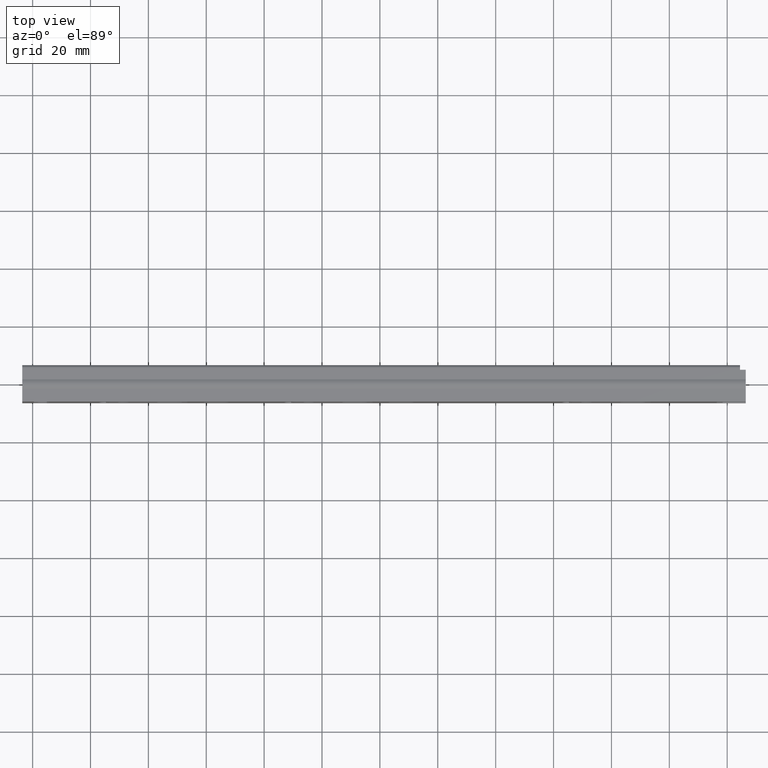
[diagram: clean part render]
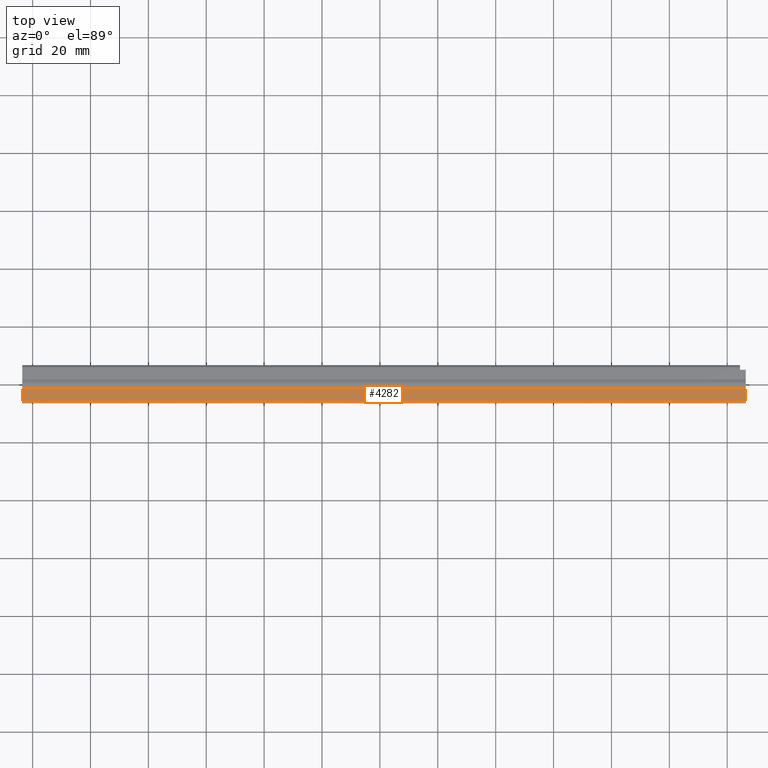
[diagram: same view with one face highlighted and labeled with its STEP entity id]
A machine part, top view. The second image highlights one B-rep face of the part: STEP entity #4282.
In plain terms, the highlighted planar face has unit normal (0, 0, 1).
Its self-contained STEP definition (entity closure, byte-faithful):
#276=FACE_OUTER_BOUND('',#518,.T.);
#518=EDGE_LOOP('',(#3253,#3254,#3255,#3256));
#876=LINE('',#6619,#1334);
#877=LINE('',#6621,#1335);
#878=LINE('',#6623,#1336);
#879=LINE('',#6624,#1337);
#1334=VECTOR('',#5346,250.);
#1335=VECTOR('',#5347,4.35);
#1336=VECTOR('',#5348,250.);
#1337=VECTOR('',#5349,4.35);
#1952=VERTEX_POINT('',#6617);
#1953=VERTEX_POINT('',#6618);
#1954=VERTEX_POINT('',#6620);
#1955=VERTEX_POINT('',#6622);
#2454=EDGE_CURVE('',#1952,#1953,#876,.T.);
#2455=EDGE_CURVE('',#1954,#1953,#877,.T.);
#2456=EDGE_CURVE('',#1955,#1954,#878,.T.);
#2457=EDGE_CURVE('',#1952,#1955,#879,.T.);
#3253=ORIENTED_EDGE('',*,*,#2454,.T.);
#3254=ORIENTED_EDGE('',*,*,#2455,.F.);
#3255=ORIENTED_EDGE('',*,*,#2456,.F.);
#3256=ORIENTED_EDGE('',*,*,#2457,.F.);
#4103=PLANE('',#4590);
#4282=ADVANCED_FACE('',(#276),#4103,.T.);
#4590=AXIS2_PLACEMENT_3D('',#6616,#5344,#5345);
#5344=DIRECTION('center_axis',(0.,0.,1.));
#5345=DIRECTION('ref_axis',(0.,-1.,0.));
#5346=DIRECTION('',(1.,0.,0.));
#5347=DIRECTION('',(0.,-1.,0.));
#5348=DIRECTION('',(1.,0.,0.));
#5349=DIRECTION('',(0.,1.,0.));
#6616=CARTESIAN_POINT('Origin',(0.,4.35000000000001,17.));
#6617=CARTESIAN_POINT('',(-125.,5.20474889637625E-15,17.));
#6618=CARTESIAN_POINT('',(125.,5.20474889637625E-15,17.));
#6619=CARTESIAN_POINT('',(0.,5.20474889637625E-15,17.));
#6620=CARTESIAN_POINT('',(125.,4.35000000000001,17.));
#6621=CARTESIAN_POINT('',(125.,4.35000000000001,17.));
#6622=CARTESIAN_POINT('',(-125.,4.35000000000001,17.));
#6623=CARTESIAN_POINT('',(0.,4.35000000000001,17.));
#6624=CARTESIAN_POINT('',(-125.,4.35000000000001,17.));